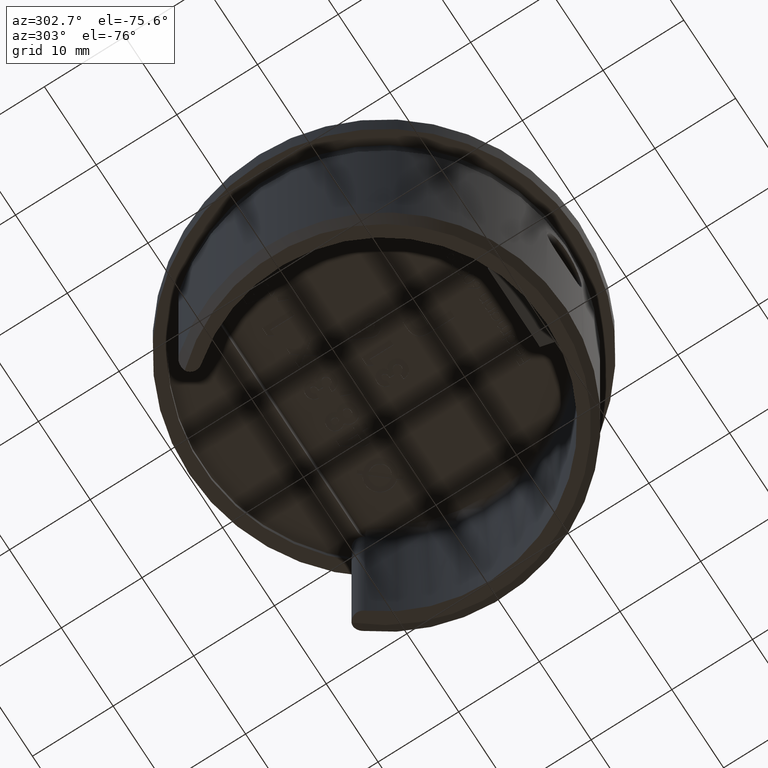
[diagram: clean part render]
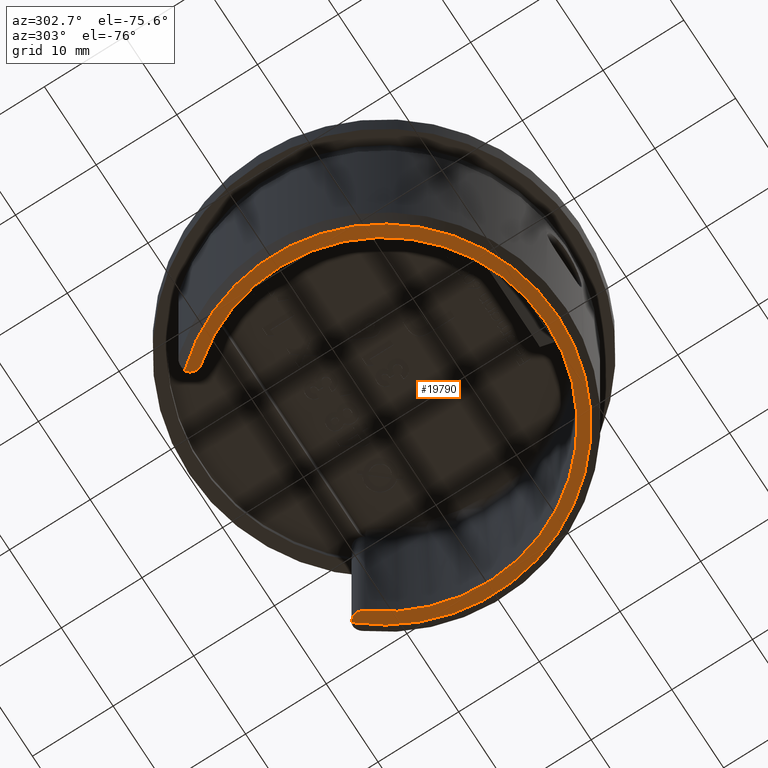
[diagram: same view with one face highlighted and labeled with its STEP entity id]
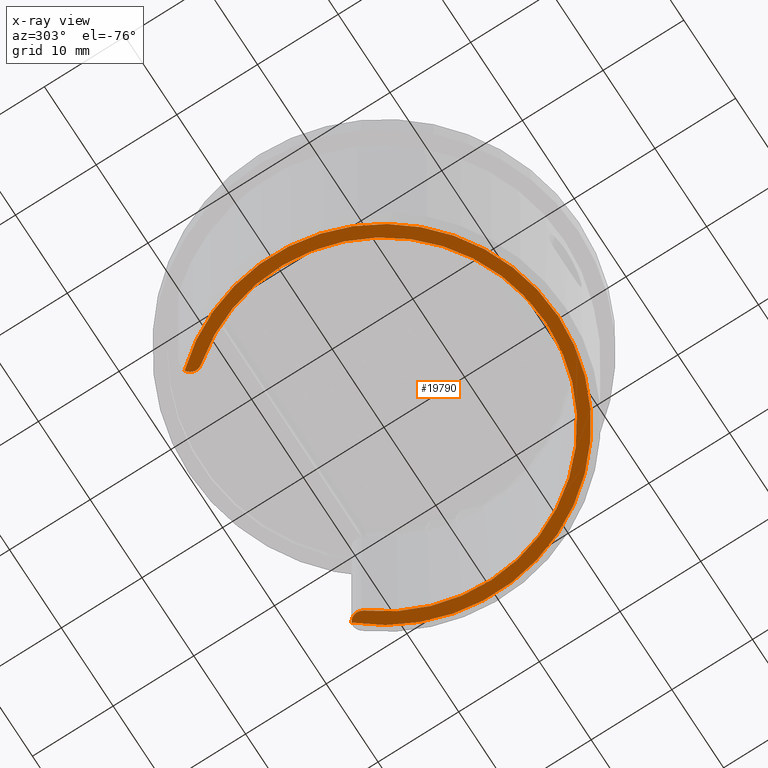
[diagram: x-ray of the same camera — body ghosted, the highlighted face saturated]
A machine part, auxiliary view. The second image highlights one B-rep face of the part: STEP entity #19790.
The next image is the same camera in x-ray: the body ghosted, the highlighted face saturated — about 0% of this face is hidden behind the body in this view.
In plain terms, the highlighted planar face has unit normal (0, 0, -1).
Its self-contained STEP definition (entity closure, byte-faithful):
#562 = DIRECTION ( 'NONE',  ( 1.000000000000000000, 0.0000000000000000000, 0.0000000000000000000 ) ) ;
#1683 = CARTESIAN_POINT ( 'NONE',  ( -8.362500000000002500, 6.655167165443730300, -30.00000000000000000 ) ) ;
#1849 = CARTESIAN_POINT ( 'NONE',  ( 16.12103601426096600, 14.37609814333852000, -30.00000000000000000 ) ) ;
#3536 = EDGE_CURVE ( 'NONE', #12204, #19036, #18079, .T. ) ;
#4159 = DIRECTION ( 'NONE',  ( 0.0000000000000000000, 0.0000000000000000000, -1.000000000000000000 ) ) ;
#4160 = DIRECTION ( 'NONE',  ( -0.0000000000000000000, 0.0000000000000000000, -1.000000000000000000 ) ) ;
#4727 = DIRECTION ( 'NONE',  ( -0.0000000000000000000, -0.0000000000000000000, 1.000000000000000000 ) ) ;
#4980 = FACE_OUTER_BOUND ( 'NONE', #21596, .T. ) ;
#5425 = ORIENTED_EDGE ( 'NONE', *, *, #3536, .T. ) ;
#6551 = EDGE_CURVE ( 'NONE', #18217, #12204, #16278, .T. ) ;
#7061 = AXIS2_PLACEMENT_3D ( 'NONE', #8192, #4727, #18748 ) ;
#7640 = AXIS2_PLACEMENT_3D ( 'NONE', #20009, #4160, #562 ) ;
#7656 = EDGE_CURVE ( 'NONE', #16627, #18217, #12400, .T. ) ;
#7714 = DIRECTION ( 'NONE',  ( -1.000000000000000000, 0.0000000000000000000, 0.0000000000000000000 ) ) ;
#8192 = CARTESIAN_POINT ( 'NONE',  ( 0.0000000000000000000, 0.0000000000000000000, -30.00000000000000000 ) ) ;
#9027 = CARTESIAN_POINT ( 'NONE',  ( 15.76649122807015000, 12.54751984876640400, -30.00000000000000000 ) ) ;
#9318 = CIRCLE ( 'NONE', #7061, 20.14999999999999900 ) ;
#10318 = PLANE ( 'NONE',  #18858 ) ;
#10539 = DIRECTION ( 'NONE',  ( 0.0000000000000000000, 0.0000000000000000000, -1.000000000000000000 ) ) ;
#10573 = CARTESIAN_POINT ( 'NONE',  ( 0.0000000000000000000, 0.0000000000000000000, -30.00000000000000000 ) ) ;
#10968 = EDGE_CURVE ( 'NONE', #19036, #16627, #9318, .T. ) ;
#11339 = CARTESIAN_POINT ( 'NONE',  ( -15.76649122807015300, 12.54751984876640200, -30.00000000000000000 ) ) ;
#12204 = VERTEX_POINT ( 'NONE', #21821 ) ;
#12258 = DIRECTION ( 'NONE',  ( 0.0000000000000000000, 0.0000000000000000000, -1.000000000000000000 ) ) ;
#12400 = CIRCLE ( 'NONE', #7640, 1.225000000000000300 ) ;
#13924 = DIRECTION ( 'NONE',  ( -1.000000000000000000, 0.0000000000000000000, -0.0000000000000000000 ) ) ;
#16278 = CIRCLE ( 'NONE', #22011, 21.60000000000000900 ) ;
#16520 = AXIS2_PLACEMENT_3D ( 'NONE', #18254, #4159, #7714 ) ;
#16627 = VERTEX_POINT ( 'NONE', #9027 ) ;
#18079 = CIRCLE ( 'NONE', #16520, 1.225000000000000300 ) ;
#18217 = VERTEX_POINT ( 'NONE', #1849 ) ;
#18254 = CARTESIAN_POINT ( 'NONE',  ( -16.72500000000000500, 13.31033433088746100, -30.00000000000000000 ) ) ;
#18748 = DIRECTION ( 'NONE',  ( -1.000000000000000000, 0.0000000000000000000, 0.0000000000000000000 ) ) ;
#18858 = AXIS2_PLACEMENT_3D ( 'NONE', #1683, #10539, #13924 ) ;
#19036 = VERTEX_POINT ( 'NONE', #11339 ) ;
#19100 = ORIENTED_EDGE ( 'NONE', *, *, #10968, .T. ) ;
#19285 = ORIENTED_EDGE ( 'NONE', *, *, #7656, .T. ) ;
#19790 = ADVANCED_FACE ( 'NONE', ( #4980 ), #10318, .T. ) ;
#20009 = CARTESIAN_POINT ( 'NONE',  ( 16.72500000000000100, 13.31033433088746100, -30.00000000000000000 ) ) ;
#20882 = DIRECTION ( 'NONE',  ( -1.000000000000000000, 0.0000000000000000000, 0.0000000000000000000 ) ) ;
#21033 = ORIENTED_EDGE ( 'NONE', *, *, #6551, .T. ) ;
#21596 = EDGE_LOOP ( 'NONE', ( #19285, #21033, #5425, #19100 ) ) ;
#21821 = CARTESIAN_POINT ( 'NONE',  ( -16.12103601426096900, 14.37609814333851900, -30.00000000000000000 ) ) ;
#22011 = AXIS2_PLACEMENT_3D ( 'NONE', #10573, #12258, #20882 ) ;